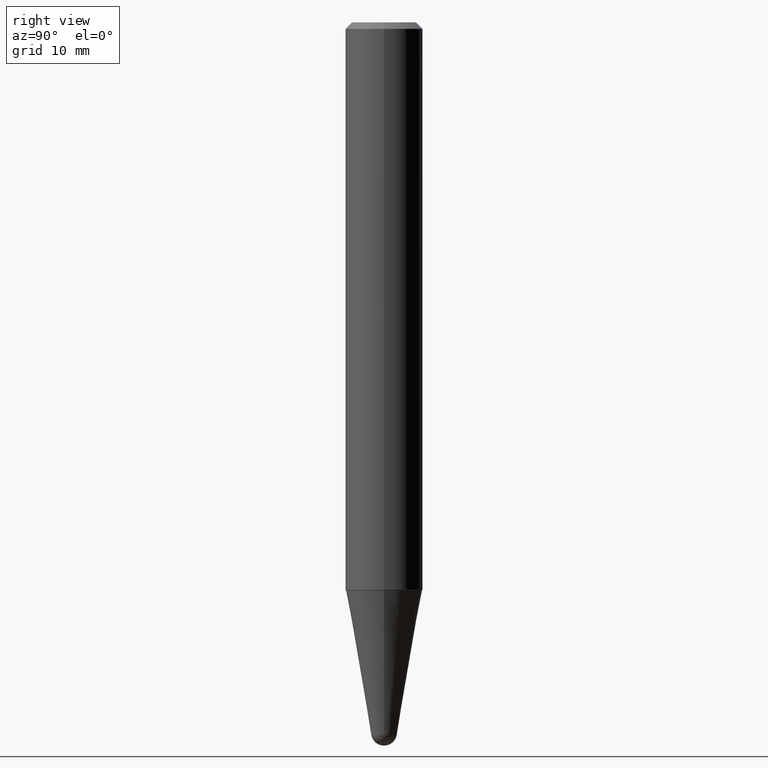
[diagram: clean part render]
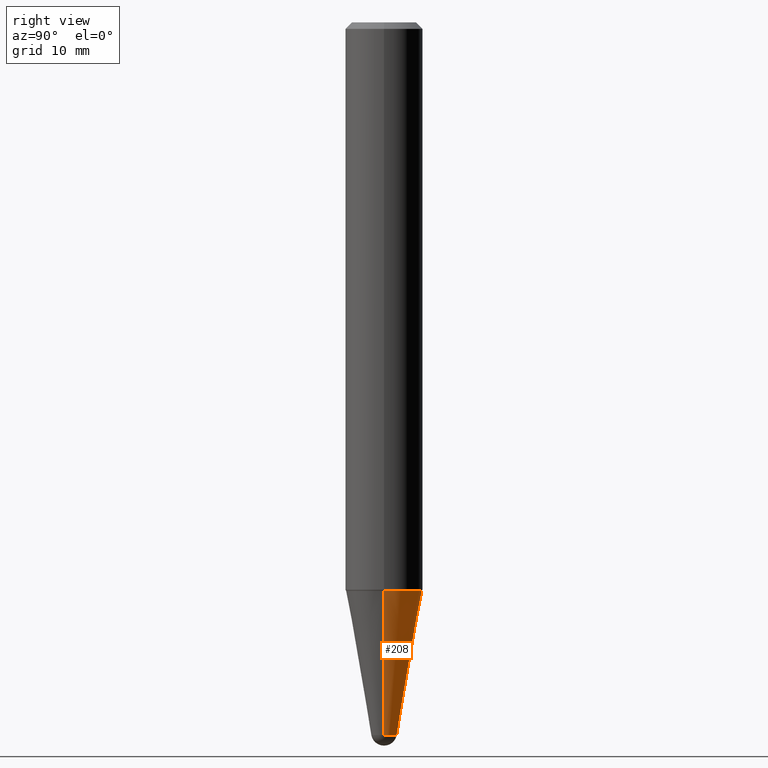
[diagram: same view with one face highlighted and labeled with its STEP entity id]
A machine part, right view. The second image highlights one B-rep face of the part: STEP entity #208.
In plain terms, the highlighted conical surface has half-angle 10 deg.
Its self-contained STEP definition (entity closure, byte-faithful):
#10 = DIRECTION ( 'NONE',  ( -2.445468806185136597E-29, 3.491481338843145583E-15, 1.000000000000000000 ) ) ;
#16 = CARTESIAN_POINT ( 'NONE',  ( 8.432839721369867924E-29, -1.203986018801382488E-14, -3.448353011104182908 ) ) ;
#36 = EDGE_CURVE ( 'NONE', #211, #214, #266, .T. ) ;
#45 = DIRECTION ( 'NONE',  ( -2.445468806185136597E-29, 3.491481338843145583E-15, 1.000000000000000000 ) ) ;
#51 = EDGE_CURVE ( 'NONE', #434, #278, #292, .T. ) ;
#58 = ORIENTED_EDGE ( 'NONE', *, *, #376, .F. ) ;
#74 = CIRCLE ( 'NONE', #134, 0.06155048456326336903 ) ;
#78 = VECTOR ( 'NONE', #115, 39.37007874015748854 ) ;
#82 = CARTESIAN_POINT ( 'NONE',  ( 8.432839721369867924E-29, -1.203986018801382488E-14, -3.448353011104182908 ) ) ;
#90 = AXIS2_PLACEMENT_3D ( 'NONE', #82, #335, #202 ) ;
#107 = CARTESIAN_POINT ( 'NONE',  ( 8.432839721369867924E-29, -1.203986018801382488E-14, -3.448353011104182908 ) ) ;
#115 = DIRECTION ( 'NONE',  ( 0.1736481776669304145, 2.225859148293765253E-15, 0.9848077530122080203 ) ) ;
#124 = CARTESIAN_POINT ( 'NONE',  ( 0.1846889624799291363, -1.089124981379659235E-14, -2.750000000000000000 ) ) ;
#134 = AXIS2_PLACEMENT_3D ( 'NONE', #16, #45, #151 ) ;
#143 = AXIS2_PLACEMENT_3D ( 'NONE', #333, #328, #253 ) ;
#146 = CARTESIAN_POINT ( 'NONE',  ( -0.1846889624799291363, -8.289279675166815415E-15, -2.750000000000000000 ) ) ;
#151 = DIRECTION ( 'NONE',  ( 1.000000000000000000, -6.982962677686260400E-15, 0.000000000000000000 ) ) ;
#185 = CARTESIAN_POINT ( 'NONE',  ( -0.06155048456326336903, -9.945898683145615595E-15, -3.448353011104182908 ) ) ;
#187 = CONICAL_SURFACE ( 'NONE', #217, 0.06155048456326336903, 0.1745329251994330311 ) ;
#190 = EDGE_CURVE ( 'NONE', #349, #214, #311, .T. ) ;
#202 = DIRECTION ( 'NONE',  ( 1.000000000000000000, -6.982962677686260400E-15, 0.000000000000000000 ) ) ;
#208 = ADVANCED_FACE ( 'NONE', ( #368 ), #187, .T. ) ;
#211 = VERTEX_POINT ( 'NONE', #185 ) ;
#214 = VERTEX_POINT ( 'NONE', #146 ) ;
#217 = AXIS2_PLACEMENT_3D ( 'NONE', #107, #10, #291 ) ;
#226 = CARTESIAN_POINT ( 'NONE',  ( 4.298047364988575990E-16, 0.06155048456325139944, -3.448353011104182908 ) ) ;
#231 = CARTESIAN_POINT ( 'NONE',  ( 0.06155048456326336903, -1.168045736915459686E-14, -3.448353011104182908 ) ) ;
#253 = DIRECTION ( 'NONE',  ( 1.000000000000000000, -6.982962677686268288E-15, 0.000000000000000000 ) ) ;
#266 = LINE ( 'NONE', #412, #423 ) ;
#278 = VERTEX_POINT ( 'NONE', #226 ) ;
#281 = ORIENTED_EDGE ( 'NONE', *, *, #190, .F. ) ;
#291 = DIRECTION ( 'NONE',  ( 1.000000000000000000, -6.982962677686260400E-15, 0.000000000000000000 ) ) ;
#292 = CIRCLE ( 'NONE', #90, 0.06155048456326336903 ) ;
#311 = CIRCLE ( 'NONE', #143, 0.1846889624799291363 ) ;
#328 = DIRECTION ( 'NONE',  ( -2.445468806185136597E-29, 3.491481338843145583E-15, 1.000000000000000000 ) ) ;
#333 = CARTESIAN_POINT ( 'NONE',  ( 6.725039217009124520E-29, -9.601573681818649859E-15, -2.750000000000000000 ) ) ;
#335 = DIRECTION ( 'NONE',  ( -2.445468806185136597E-29, 3.491481338843145583E-15, 1.000000000000000000 ) ) ;
#337 = LINE ( 'NONE', #342, #78 ) ;
#342 = CARTESIAN_POINT ( 'NONE',  ( 0.06155048456326336903, -1.246966492451259664E-14, -3.448353011104182908 ) ) ;
#349 = VERTEX_POINT ( 'NONE', #124 ) ;
#365 = ORIENTED_EDGE ( 'NONE', *, *, #51, .T. ) ;
#368 = FACE_OUTER_BOUND ( 'NONE', #392, .T. ) ;
#376 = EDGE_CURVE ( 'NONE', #434, #349, #337, .T. ) ;
#390 = EDGE_CURVE ( 'NONE', #278, #211, #74, .T. ) ;
#392 = EDGE_LOOP ( 'NONE', ( #427, #429, #281, #58, #365 ) ) ;
#412 = CARTESIAN_POINT ( 'NONE',  ( -0.06155048456326336903, -1.160251769112441577E-14, -3.448353011104182908 ) ) ;
#423 = VECTOR ( 'NONE', #454, 39.37007874015748854 ) ;
#427 = ORIENTED_EDGE ( 'NONE', *, *, #390, .T. ) ;
#429 = ORIENTED_EDGE ( 'NONE', *, *, #36, .T. ) ;
#434 = VERTEX_POINT ( 'NONE', #231 ) ;
#454 = DIRECTION ( 'NONE',  ( -0.1736481776669304145, 4.672282404182340767E-15, 0.9848077530122080203 ) ) ;